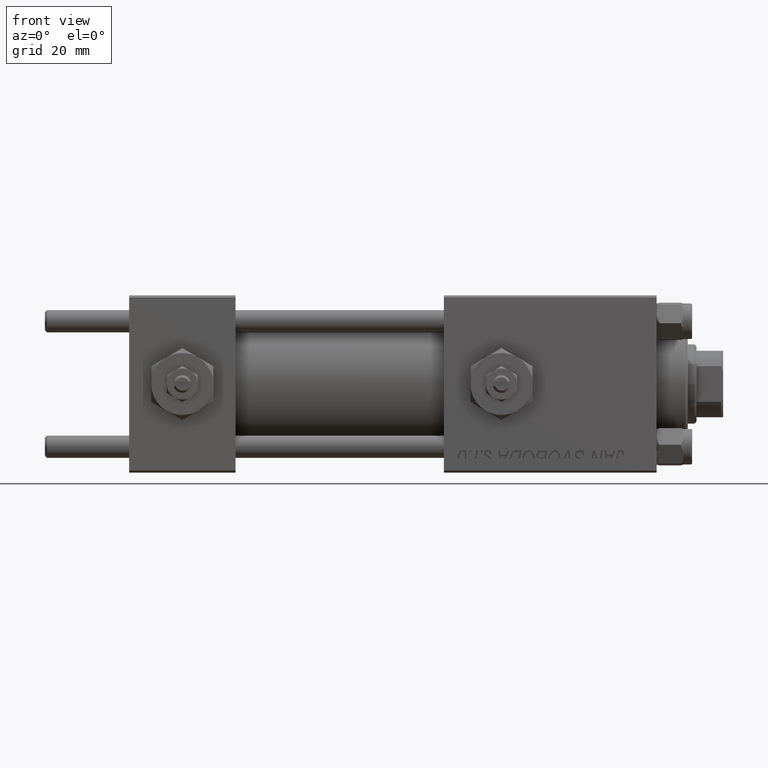
[diagram: clean part render]
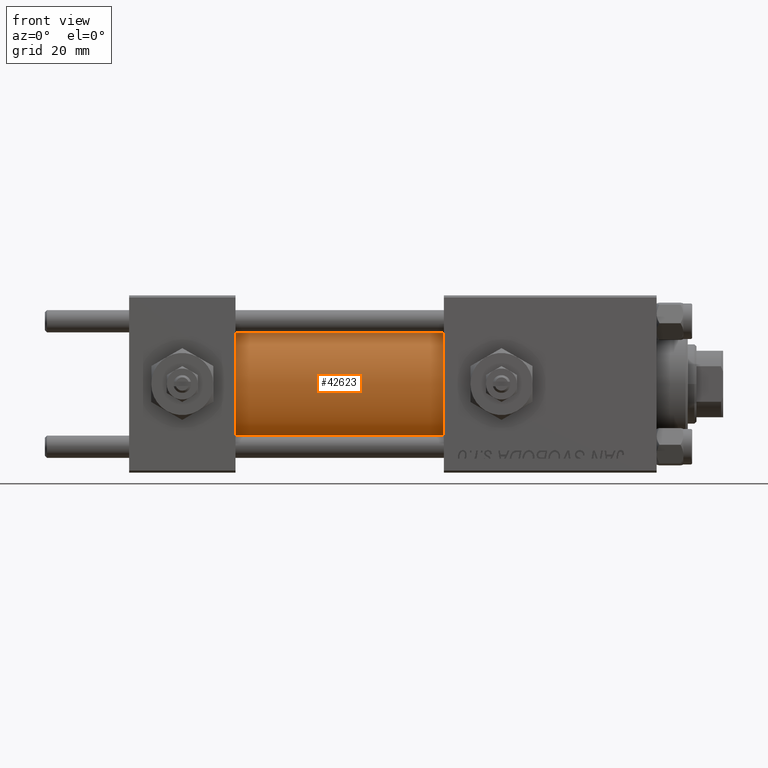
[diagram: same view with one face highlighted and labeled with its STEP entity id]
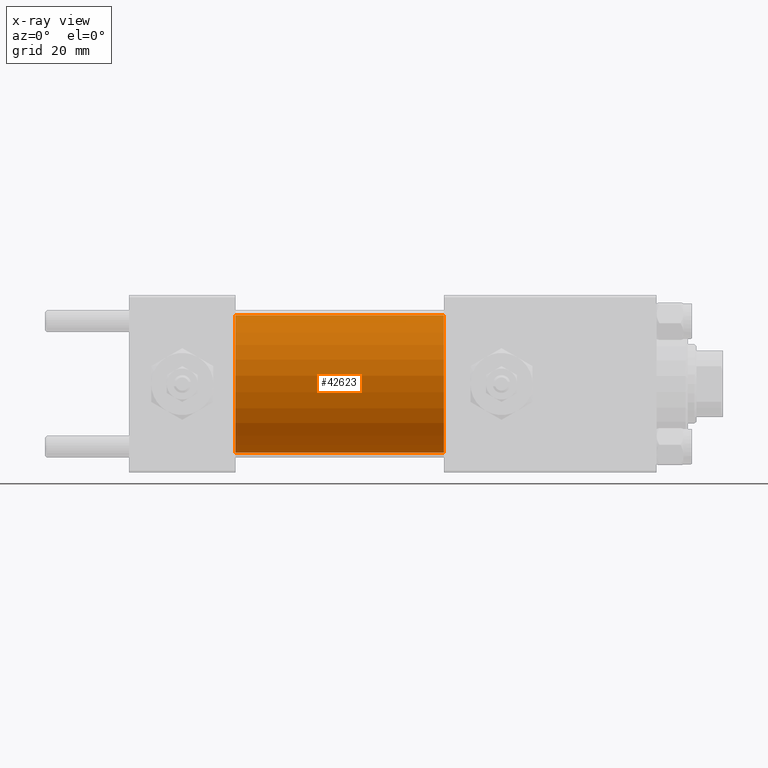
[diagram: x-ray of the same camera — body ghosted, the highlighted face saturated]
A machine part, front view. The second image highlights one B-rep face of the part: STEP entity #42623.
The next image is the same camera in x-ray: the body ghosted, the highlighted face saturated — about 0% of this face is hidden behind the body in this view.
In plain terms, the highlighted cylindrical surface (partial cylindrical patch) has radius 15.5 mm, axis along (-1, -0, -0).
Its self-contained STEP definition (entity closure, byte-faithful):
#1232 = ORIENTED_EDGE ( 'NONE', *, *, #25555, .F. ) ;
#1316 = DIRECTION ( 'NONE',  ( -1.000000000000000000, -0.000000000000000000, -0.000000000000000000 ) ) ;
#2007 = CARTESIAN_POINT ( 'NONE',  ( 71.00000000000001421, 0.000000000000000000, 15.50000000000000000 ) ) ;
#2518 = CARTESIAN_POINT ( 'NONE',  ( 71.00000000000001421, 0.000000000000000000, 0.000000000000000000 ) ) ;
#2959 = CARTESIAN_POINT ( 'NONE',  ( 71.00000000000001421, 0.000000000000000000, 15.50000000000000000 ) ) ;
#3569 = DIRECTION ( 'NONE',  ( 0.000000000000000000, 0.000000000000000000, 1.000000000000000000 ) ) ;
#3736 = EDGE_LOOP ( 'NONE', ( #50019, #1232, #10509, #46523 ) ) ;
#4114 = VECTOR ( 'NONE', #18946, 1000.000000000000000 ) ;
#5198 = CARTESIAN_POINT ( 'NONE',  ( 24.00000000000000000, 0.000000000000000000, 0.000000000000000000 ) ) ;
#5559 = CARTESIAN_POINT ( 'NONE',  ( 24.00000000000000000, 0.000000000000000000, 15.50000000000000000 ) ) ;
#6089 = CARTESIAN_POINT ( 'NONE',  ( 71.00000000000001421, 1.898202538678397557E-15, -15.50000000000000000 ) ) ;
#9741 = DIRECTION ( 'NONE',  ( 0.000000000000000000, 0.000000000000000000, -1.000000000000000000 ) ) ;
#10509 = ORIENTED_EDGE ( 'NONE', *, *, #34768, .T. ) ;
#12909 = CIRCLE ( 'NONE', #37205, 15.50000000000000000 ) ;
#13681 = DIRECTION ( 'NONE',  ( 1.000000000000000000, 0.000000000000000000, 0.000000000000000000 ) ) ;
#15097 = DIRECTION ( 'NONE',  ( -1.000000000000000000, -0.000000000000000000, -0.000000000000000000 ) ) ;
#18946 = DIRECTION ( 'NONE',  ( -1.000000000000000000, -0.000000000000000000, -0.000000000000000000 ) ) ;
#20643 = EDGE_CURVE ( 'NONE', #39532, #29214, #45411, .T. ) ;
#22456 = CYLINDRICAL_SURFACE ( 'NONE', #32028, 15.50000000000000000 ) ;
#22593 = CIRCLE ( 'NONE', #36049, 15.50000000000000000 ) ;
#22699 = VERTEX_POINT ( 'NONE', #2007 ) ;
#22901 = LINE ( 'NONE', #2959, #4114 ) ;
#23239 = FACE_OUTER_BOUND ( 'NONE', #3736, .T. ) ;
#24629 = DIRECTION ( 'NONE',  ( 0.000000000000000000, 0.000000000000000000, 1.000000000000000000 ) ) ;
#25555 = EDGE_CURVE ( 'NONE', #22699, #39532, #12909, .T. ) ;
#29214 = VERTEX_POINT ( 'NONE', #32536 ) ;
#32028 = AXIS2_PLACEMENT_3D ( 'NONE', #2518, #15097, #3569 ) ;
#32536 = CARTESIAN_POINT ( 'NONE',  ( 24.00000000000000000, 1.898202538678397557E-15, -15.50000000000000000 ) ) ;
#34768 = EDGE_CURVE ( 'NONE', #22699, #35660, #22901, .T. ) ;
#35660 = VERTEX_POINT ( 'NONE', #5559 ) ;
#36049 = AXIS2_PLACEMENT_3D ( 'NONE', #5198, #36207, #24629 ) ;
#36207 = DIRECTION ( 'NONE',  ( 1.000000000000000000, 0.000000000000000000, 0.000000000000000000 ) ) ;
#37205 = AXIS2_PLACEMENT_3D ( 'NONE', #49639, #13681, #9741 ) ;
#37294 = CARTESIAN_POINT ( 'NONE',  ( 71.00000000000001421, 1.898202538678397557E-15, -15.50000000000000000 ) ) ;
#37829 = EDGE_CURVE ( 'NONE', #35660, #29214, #22593, .T. ) ;
#39532 = VERTEX_POINT ( 'NONE', #6089 ) ;
#42623 = ADVANCED_FACE ( 'NONE', ( #23239 ), #22456, .T. ) ;
#45411 = LINE ( 'NONE', #37294, #49487 ) ;
#46523 = ORIENTED_EDGE ( 'NONE', *, *, #37829, .T. ) ;
#49487 = VECTOR ( 'NONE', #1316, 1000.000000000000000 ) ;
#49639 = CARTESIAN_POINT ( 'NONE',  ( 71.00000000000001421, 0.000000000000000000, 0.000000000000000000 ) ) ;
#50019 = ORIENTED_EDGE ( 'NONE', *, *, #20643, .F. ) ;